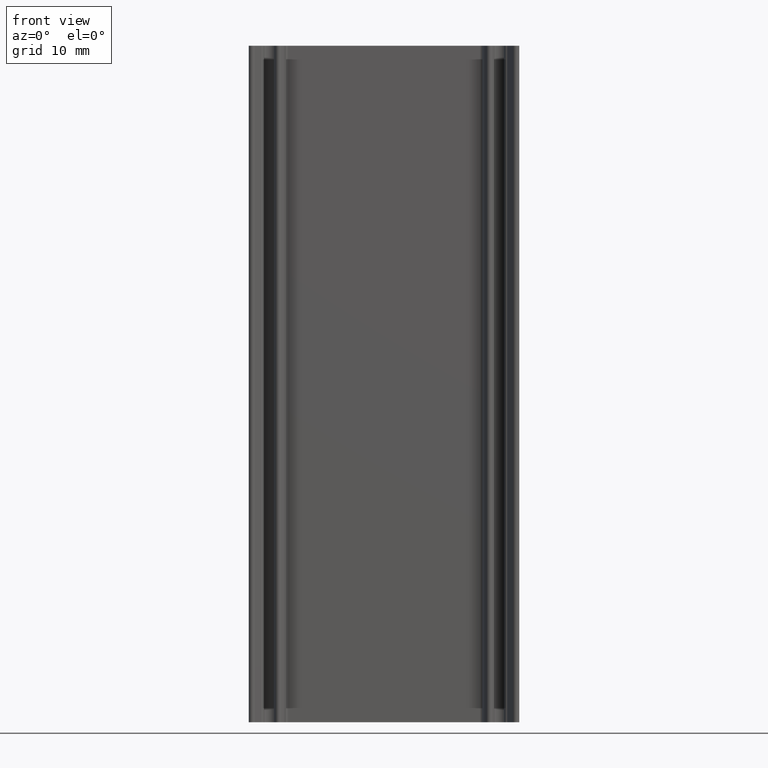
[diagram: clean part render]
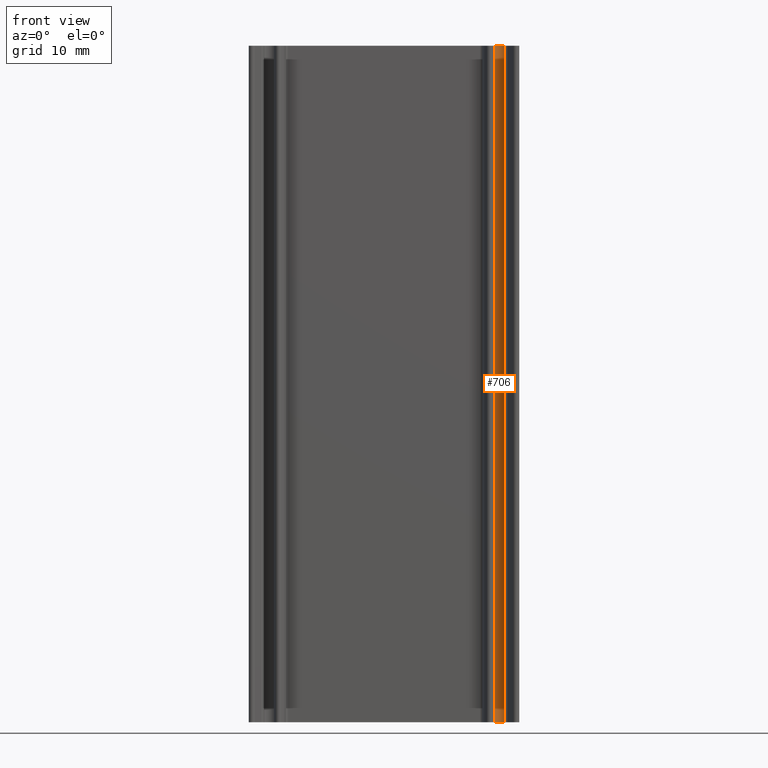
[diagram: same view with one face highlighted and labeled with its STEP entity id]
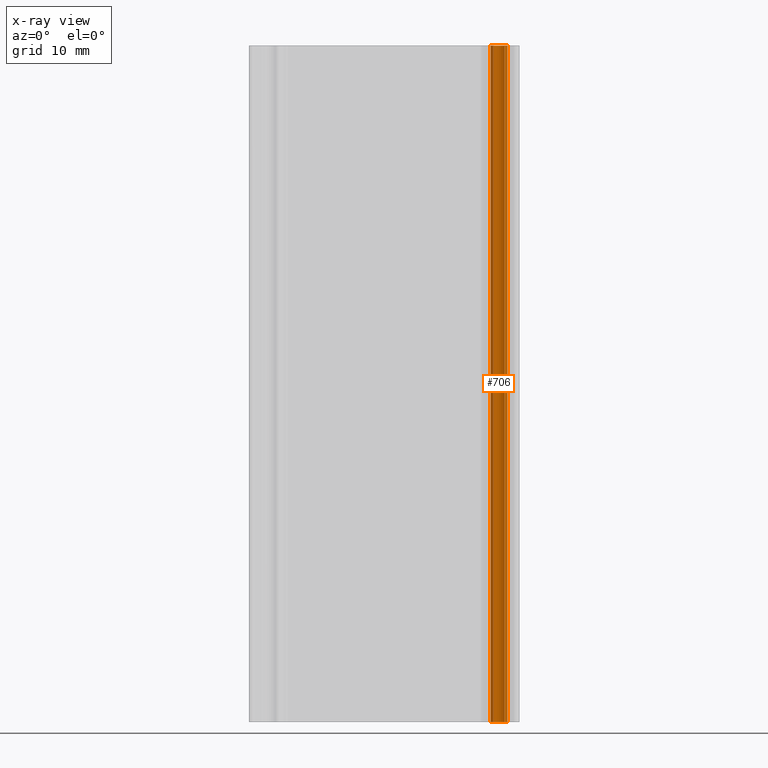
[diagram: x-ray of the same camera — body ghosted, the highlighted face saturated]
A machine part, front view. The second image highlights one B-rep face of the part: STEP entity #706.
The next image is the same camera in x-ray: the body ghosted, the highlighted face saturated — about 0% of this face is hidden behind the body in this view.
In plain terms, the highlighted cylindrical surface (edge-blend (fillet) strip) has radius 1.25 mm, axis along (0, 0, 1).
Its self-contained STEP definition (entity closure, byte-faithful):
#40=FACE_OUTER_BOUND('',#78,.T.);
#78=EDGE_LOOP('',(#495,#496,#497,#498));
#120=LINE('',#1106,#184);
#121=LINE('',#1112,#185);
#184=VECTOR('',#880,100.);
#185=VECTOR('',#887,100.);
#249=CIRCLE('',#761,1.24999999999524);
#250=CIRCLE('',#762,1.24999999999524);
#297=VERTEX_POINT('',#1102);
#298=VERTEX_POINT('',#1104);
#299=VERTEX_POINT('',#1108);
#300=VERTEX_POINT('',#1110);
#378=EDGE_CURVE('',#297,#298,#120,.T.);
#379=EDGE_CURVE('',#297,#299,#249,.T.);
#380=EDGE_CURVE('',#300,#298,#250,.T.);
#381=EDGE_CURVE('',#299,#300,#121,.T.);
#495=ORIENTED_EDGE('',*,*,#379,.F.);
#496=ORIENTED_EDGE('',*,*,#378,.T.);
#497=ORIENTED_EDGE('',*,*,#380,.F.);
#498=ORIENTED_EDGE('',*,*,#381,.F.);
#682=CYLINDRICAL_SURFACE('',#760,1.24999999999524);
#706=ADVANCED_FACE('',(#40),#682,.F.);
#760=AXIS2_PLACEMENT_3D('',#1107,#881,#882);
#761=AXIS2_PLACEMENT_3D('',#1109,#883,#884);
#762=AXIS2_PLACEMENT_3D('',#1111,#885,#886);
#880=DIRECTION('',(0.,0.,-1.));
#881=DIRECTION('center_axis',(0.,0.,1.));
#882=DIRECTION('ref_axis',(0.658163185407506,-0.752875302672524,0.));
#883=DIRECTION('center_axis',(0.,0.,-1.));
#884=DIRECTION('ref_axis',(0.658163185407506,-0.752875302672524,0.));
#885=DIRECTION('center_axis',(0.,0.,1.));
#886=DIRECTION('ref_axis',(0.658163185407506,-0.752875302672524,0.));
#887=DIRECTION('',(0.,0.,-1.));
#1102=CARTESIAN_POINT('',(16.1772960182764,-3.94109412820634,100.));
#1104=CARTESIAN_POINT('',(16.1772960182764,-3.94109412820634,0.));
#1106=CARTESIAN_POINT('',(16.1772960182764,-3.94109412820634,0.));
#1107=CARTESIAN_POINT('Origin',(17.0000000000454,-2.99999999988045,0.));
#1108=CARTESIAN_POINT('',(17.8227039818016,-3.94109412821751,100.));
#1109=CARTESIAN_POINT('Origin',(17.0000000000454,-2.99999999988045,100.));
#1110=CARTESIAN_POINT('',(17.8227039818016,-3.94109412821751,0.));
#1111=CARTESIAN_POINT('Origin',(17.0000000000454,-2.99999999988045,0.));
#1112=CARTESIAN_POINT('',(17.8227039818016,-3.94109412821751,0.));